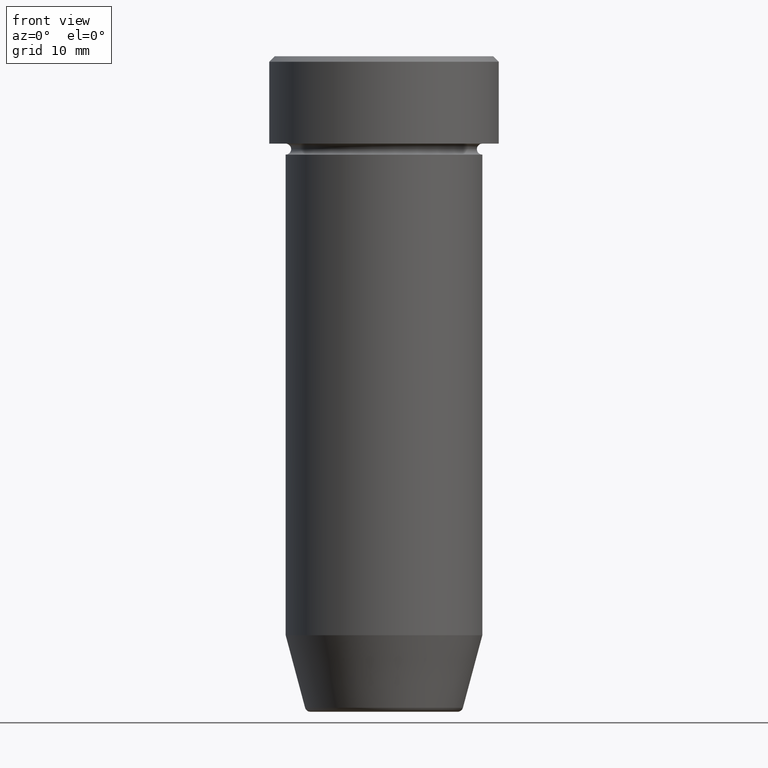
[diagram: clean part render]
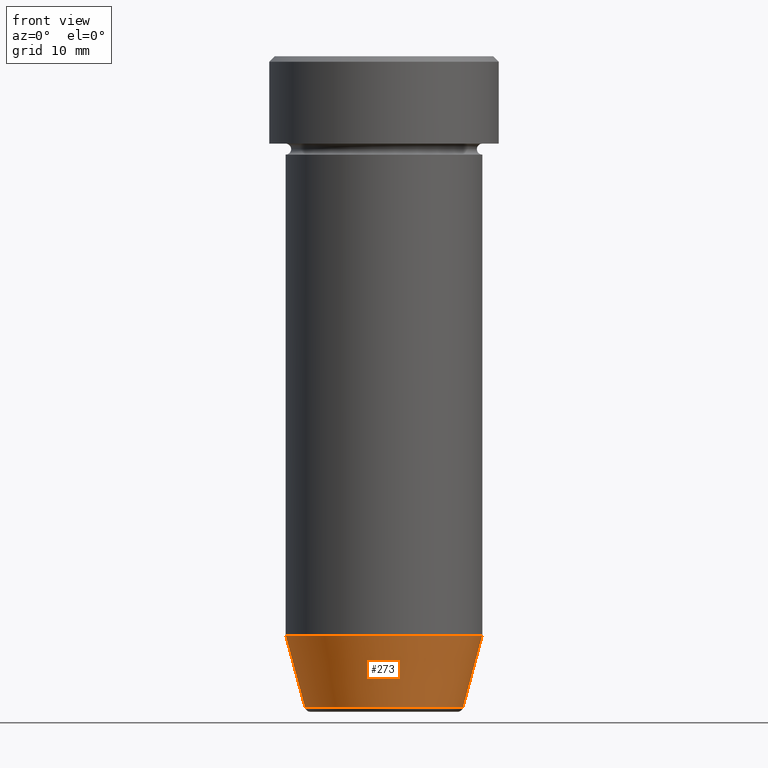
[diagram: same view with one face highlighted and labeled with its STEP entity id]
A machine part, front view. The second image highlights one B-rep face of the part: STEP entity #273.
In plain terms, the highlighted conical surface has half-angle 15 deg.
Its self-contained STEP definition (entity closure, byte-faithful):
#17 = EDGE_CURVE ( 'NONE', #148, #454, #276, .T. ) ;
#51 = FACE_OUTER_BOUND ( 'NONE', #157, .T. ) ;
#69 = CARTESIAN_POINT ( 'NONE',  ( -7.124355652982136355, 8.724819346411924116E-16, -60.00000000000000000 ) ) ;
#101 = EDGE_CURVE ( 'NONE', #292, #148, #212, .T. ) ;
#121 = DIRECTION ( 'NONE',  ( -0.000000000000000000, -0.000000000000000000, 1.000000000000000000 ) ) ;
#144 = ORIENTED_EDGE ( 'NONE', *, *, #17, .F. ) ;
#146 = ORIENTED_EDGE ( 'NONE', *, *, #237, .T. ) ;
#147 = VECTOR ( 'NONE', #215, 1000.000000000000000 ) ;
#148 = VERTEX_POINT ( 'NONE', #365 ) ;
#157 = EDGE_LOOP ( 'NONE', ( #321, #195, #146, #144 ) ) ;
#166 = DIRECTION ( 'NONE',  ( 1.000000000000000000, 0.000000000000000000, 0.000000000000000000 ) ) ;
#182 = LINE ( 'NONE', #363, #517 ) ;
#195 = ORIENTED_EDGE ( 'NONE', *, *, #504, .T. ) ;
#212 = LINE ( 'NONE', #69, #147 ) ;
#215 = DIRECTION ( 'NONE',  ( -0.2588190451025213501, 3.169619151431772337E-17, 0.9659258262890680902 ) ) ;
#237 = EDGE_CURVE ( 'NONE', #583, #454, #182, .T. ) ;
#273 = ADVANCED_FACE ( 'NONE', ( #51 ), #490, .T. ) ;
#276 = CIRCLE ( 'NONE', #507, 9.000000000000000000 ) ;
#285 = DIRECTION ( 'NONE',  ( -1.000000000000000000, 0.000000000000000000, 0.000000000000000000 ) ) ;
#292 = VERTEX_POINT ( 'NONE', #344 ) ;
#297 = CIRCLE ( 'NONE', #581, 7.223655072137191269 ) ;
#305 = CARTESIAN_POINT ( 'NONE',  ( 0.000000000000000000, 0.000000000000000000, -53.00000000000000000 ) ) ;
#321 = ORIENTED_EDGE ( 'NONE', *, *, #101, .F. ) ;
#329 = CARTESIAN_POINT ( 'NONE',  ( 0.000000000000000000, 0.000000000000000000, -59.62940952255126348 ) ) ;
#344 = CARTESIAN_POINT ( 'NONE',  ( -7.223655072137192157, 9.934123627281767082E-16, -59.62940952255126348 ) ) ;
#363 = CARTESIAN_POINT ( 'NONE',  ( 7.124355652982136355, 0.000000000000000000, -60.00000000000000000 ) ) ;
#365 = CARTESIAN_POINT ( 'NONE',  ( -9.000000000000000000, 1.102182119232617714E-15, -53.00000000000000000 ) ) ;
#369 = CARTESIAN_POINT ( 'NONE',  ( 9.000000000000000000, 0.000000000000000000, -53.00000000000000000 ) ) ;
#374 = CARTESIAN_POINT ( 'NONE',  ( 0.000000000000000000, 0.000000000000000000, -60.00000000000000000 ) ) ;
#433 = CARTESIAN_POINT ( 'NONE',  ( 7.223655072137192157, 0.000000000000000000, -59.62940952255126348 ) ) ;
#454 = VERTEX_POINT ( 'NONE', #369 ) ;
#490 = CONICAL_SURFACE ( 'NONE', #570, 7.124355652982136355, 0.2617993877991500740 ) ;
#504 = EDGE_CURVE ( 'NONE', #292, #583, #297, .T. ) ;
#507 = AXIS2_PLACEMENT_3D ( 'NONE', #305, #121, #166 ) ;
#514 = DIRECTION ( 'NONE',  ( -0.000000000000000000, -0.000000000000000000, 1.000000000000000000 ) ) ;
#517 = VECTOR ( 'NONE', #551, 1000.000000000000000 ) ;
#523 = DIRECTION ( 'NONE',  ( -0.000000000000000000, -0.000000000000000000, 1.000000000000000000 ) ) ;
#551 = DIRECTION ( 'NONE',  ( 0.2588190451025213501, 0.000000000000000000, 0.9659258262890680902 ) ) ;
#563 = DIRECTION ( 'NONE',  ( 1.000000000000000000, 0.000000000000000000, 0.000000000000000000 ) ) ;
#570 = AXIS2_PLACEMENT_3D ( 'NONE', #374, #523, #563 ) ;
#581 = AXIS2_PLACEMENT_3D ( 'NONE', #329, #514, #285 ) ;
#583 = VERTEX_POINT ( 'NONE', #433 ) ;